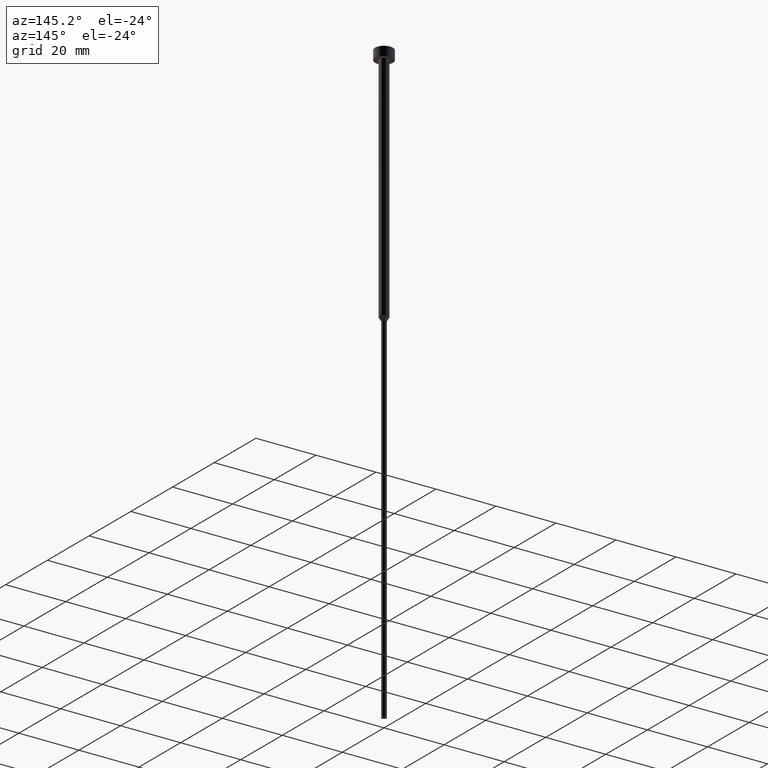
[diagram: clean part render]
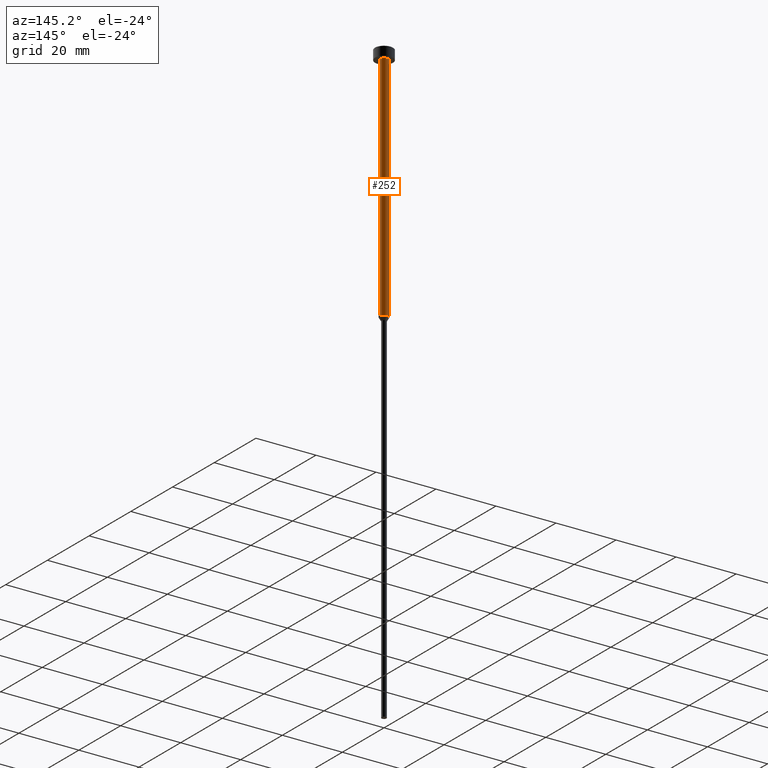
[diagram: same view with one face highlighted and labeled with its STEP entity id]
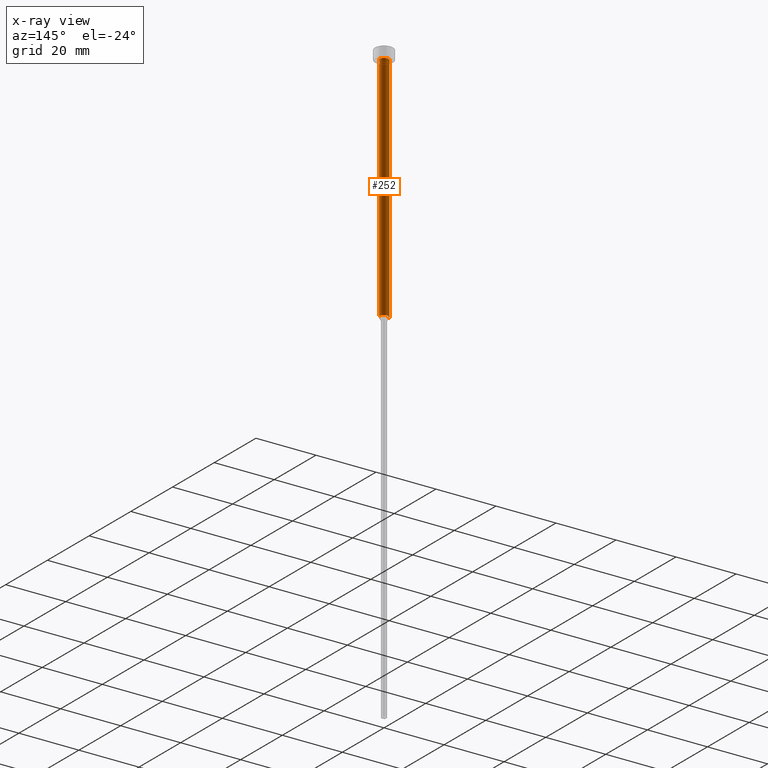
[diagram: x-ray of the same camera — body ghosted, the highlighted face saturated]
A machine part, auxiliary view. The second image highlights one B-rep face of the part: STEP entity #252.
The next image is the same camera in x-ray: the body ghosted, the highlighted face saturated — about 0% of this face is hidden behind the body in this view.
In plain terms, the highlighted cylindrical surface (edge-blend (fillet) strip) has radius 1.5 mm, axis along (-0, -0, 1).
Its self-contained STEP definition (entity closure, byte-faithful):
#8 = EDGE_CURVE ( 'NONE', #15, #264, #226, .T. ) ;
#15 = VERTEX_POINT ( 'NONE', #239 ) ;
#18 = CARTESIAN_POINT ( 'NONE',  ( 0.000000000000000000, 0.000000000000000000, -80.00000000000000000 ) ) ;
#21 = VERTEX_POINT ( 'NONE', #128 ) ;
#56 = AXIS2_PLACEMENT_3D ( 'NONE', #18, #271, #324 ) ;
#58 = ORIENTED_EDGE ( 'NONE', *, *, #348, .F. ) ;
#60 = LINE ( 'NONE', #221, #222 ) ;
#69 = VERTEX_POINT ( 'NONE', #227 ) ;
#78 = CARTESIAN_POINT ( 'NONE',  ( -1.500000000000000000, 1.836970198721029934E-16, 0.000000000000000000 ) ) ;
#82 = VECTOR ( 'NONE', #129, 1000.000000000000000 ) ;
#98 = DIRECTION ( 'NONE',  ( 1.000000000000000000, 0.000000000000000000, 0.000000000000000000 ) ) ;
#100 = ORIENTED_EDGE ( 'NONE', *, *, #8, .T. ) ;
#107 = DIRECTION ( 'NONE',  ( -0.000000000000000000, -0.000000000000000000, 1.000000000000000000 ) ) ;
#109 = AXIS2_PLACEMENT_3D ( 'NONE', #197, #331, #292 ) ;
#115 = EDGE_CURVE ( 'NONE', #69, #21, #294, .T. ) ;
#128 = CARTESIAN_POINT ( 'NONE',  ( -1.500000000000000000, 1.836970198721029934E-16, -3.000000000000000888 ) ) ;
#129 = DIRECTION ( 'NONE',  ( -0.000000000000000000, -0.000000000000000000, 1.000000000000000000 ) ) ;
#146 = DIRECTION ( 'NONE',  ( -0.000000000000000000, -0.000000000000000000, 1.000000000000000000 ) ) ;
#178 = LINE ( 'NONE', #78, #82 ) ;
#197 = CARTESIAN_POINT ( 'NONE',  ( 0.000000000000000000, 0.000000000000000000, -3.000000000000000888 ) ) ;
#200 = CYLINDRICAL_SURFACE ( 'NONE', #233, 1.500000000000000000 ) ;
#204 = ORIENTED_EDGE ( 'NONE', *, *, #263, .T. ) ;
#210 = CARTESIAN_POINT ( 'NONE',  ( -1.500000000000000000, 1.836970198721029934E-16, -80.00000000000000000 ) ) ;
#221 = CARTESIAN_POINT ( 'NONE',  ( 1.500000000000000000, 0.000000000000000000, 0.000000000000000000 ) ) ;
#222 = VECTOR ( 'NONE', #107, 1000.000000000000000 ) ;
#226 = CIRCLE ( 'NONE', #56, 1.500000000000000000 ) ;
#227 = CARTESIAN_POINT ( 'NONE',  ( 1.500000000000000000, 0.000000000000000000, -3.000000000000000888 ) ) ;
#231 = ORIENTED_EDGE ( 'NONE', *, *, #115, .F. ) ;
#233 = AXIS2_PLACEMENT_3D ( 'NONE', #241, #146, #98 ) ;
#239 = CARTESIAN_POINT ( 'NONE',  ( 1.500000000000000000, 0.000000000000000000, -80.00000000000000000 ) ) ;
#241 = CARTESIAN_POINT ( 'NONE',  ( 0.000000000000000000, 0.000000000000000000, 0.000000000000000000 ) ) ;
#252 = ADVANCED_FACE ( 'NONE', ( #323 ), #200, .T. ) ;
#263 = EDGE_CURVE ( 'NONE', #264, #21, #178, .T. ) ;
#264 = VERTEX_POINT ( 'NONE', #210 ) ;
#271 = DIRECTION ( 'NONE',  ( -0.000000000000000000, -0.000000000000000000, 1.000000000000000000 ) ) ;
#292 = DIRECTION ( 'NONE',  ( 1.000000000000000000, 0.000000000000000000, 0.000000000000000000 ) ) ;
#294 = CIRCLE ( 'NONE', #109, 1.500000000000000000 ) ;
#323 = FACE_OUTER_BOUND ( 'NONE', #342, .T. ) ;
#324 = DIRECTION ( 'NONE',  ( 1.000000000000000000, 0.000000000000000000, 0.000000000000000000 ) ) ;
#331 = DIRECTION ( 'NONE',  ( -0.000000000000000000, -0.000000000000000000, 1.000000000000000000 ) ) ;
#342 = EDGE_LOOP ( 'NONE', ( #100, #204, #231, #58 ) ) ;
#348 = EDGE_CURVE ( 'NONE', #15, #69, #60, .T. ) ;